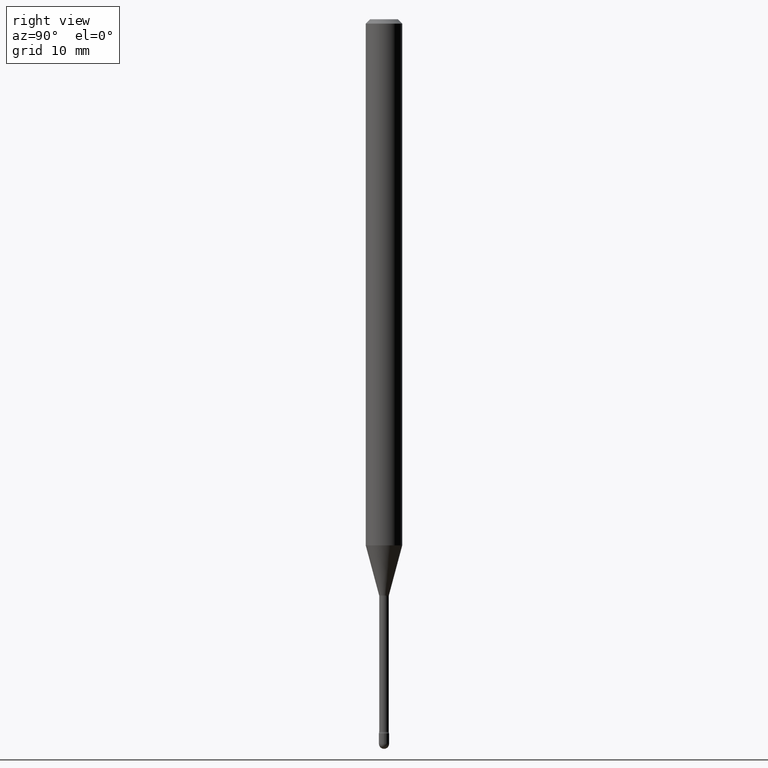
[diagram: clean part render]
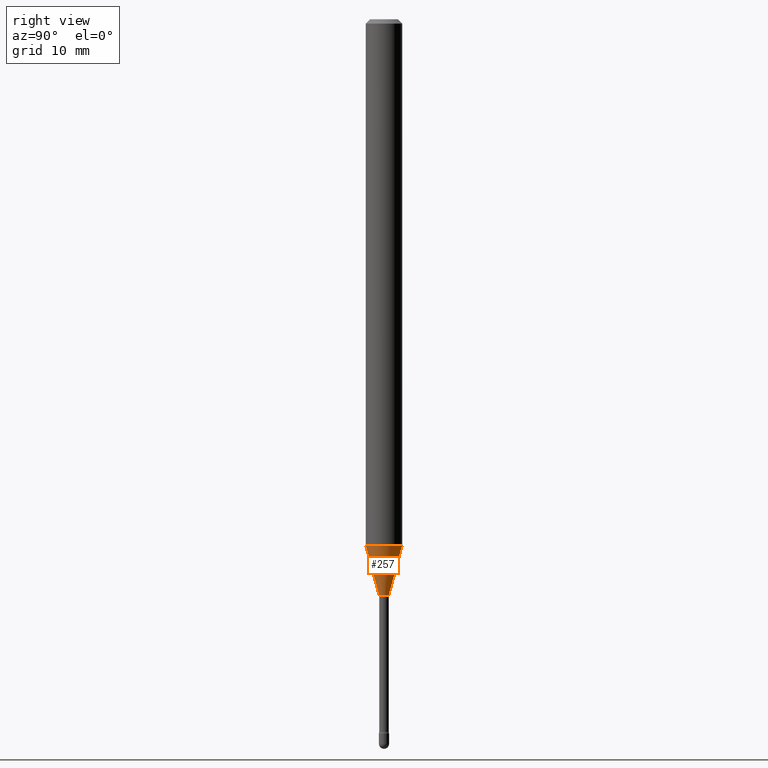
[diagram: same view with one face highlighted and labeled with its STEP entity id]
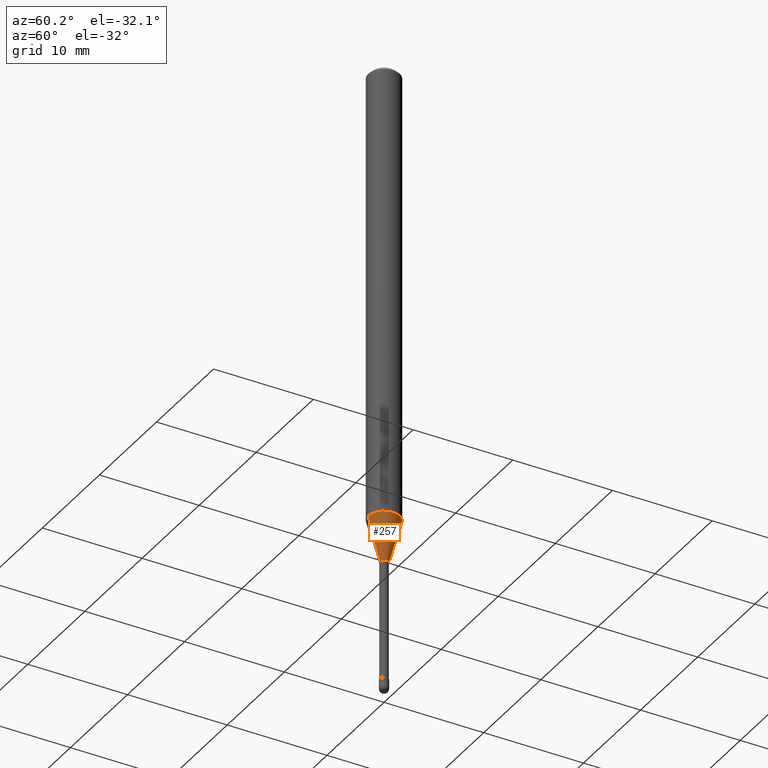
[diagram: same view with one face highlighted and labeled with its STEP entity id]
A machine part, right view. The second image highlights one B-rep face of the part: STEP entity #257.
A second angle (auxiliary view) of the same face is appended — the face is thin or edge-on in the first view.
In plain terms, the highlighted conical surface has half-angle 15 deg.
Its self-contained STEP definition (entity closure, byte-faithful):
#1 = CARTESIAN_POINT ( 'NONE',  ( 4.409534162188952545E-29, -6.295606565068949190E-15, -1.803139060311453656 ) ) ;
#8 = LINE ( 'NONE', #216, #560 ) ;
#36 = EDGE_CURVE ( 'NONE', #299, #368, #176, .T. ) ;
#66 = CIRCLE ( 'NONE', #314, 0.01696111260566398118 ) ;
#70 = ORIENTED_EDGE ( 'NONE', *, *, #494, .T. ) ;
#72 = CARTESIAN_POINT ( 'NONE',  ( 2.823025816868956740E-16, 0.01696111260565709433, -1.973092501787273134 ) ) ;
#77 = VERTEX_POINT ( 'NONE', #416 ) ;
#91 = DIRECTION ( 'NONE',  ( -2.445476480015523833E-29, 3.491470349481263853E-15, 1.000000000000000000 ) ) ;
#129 = CARTESIAN_POINT ( 'NONE',  ( 4.440892098501065952E-16, 0.06249999999999369948, -1.803139060311453878 ) ) ;
#170 = DIRECTION ( 'NONE',  ( -2.445476480015523833E-29, 3.491470349481263853E-15, 1.000000000000000000 ) ) ;
#176 = CIRCLE ( 'NONE', #478, 0.06250000000000000000 ) ;
#180 = DIRECTION ( 'NONE',  ( 1.839019923739598738E-15, 0.2588190451025247363, 0.9659258262890673130 ) ) ;
#181 = ORIENTED_EDGE ( 'NONE', *, *, #36, .F. ) ;
#216 = CARTESIAN_POINT ( 'NONE',  ( 1.205159535236843090E-16, 0.01696111260565709086, -1.973092501787273134 ) ) ;
#233 = CONICAL_SURFACE ( 'NONE', #558, 0.01696111260566398118, 0.2617993877991500740 ) ;
#254 = FACE_OUTER_BOUND ( 'NONE', #395, .T. ) ;
#257 = ADVANCED_FACE ( 'NONE', ( #254 ), #233, .T. ) ;
#264 = DIRECTION ( 'NONE',  ( -6.982962677686266711E-15, -1.000000000000000000, 0.000000000000000000 ) ) ;
#292 = CARTESIAN_POINT ( 'NONE',  ( -4.364351673553477397E-16, -0.06250000000000631439, -1.803139060311453434 ) ) ;
#299 = VERTEX_POINT ( 'NONE', #292 ) ;
#300 = CARTESIAN_POINT ( 'NONE',  ( -1.184388162973373725E-16, -0.01696111260567087151, -1.973092501787273134 ) ) ;
#301 = ORIENTED_EDGE ( 'NONE', *, *, #340, .F. ) ;
#314 = AXIS2_PLACEMENT_3D ( 'NONE', #482, #91, #264 ) ;
#326 = VERTEX_POINT ( 'NONE', #72 ) ;
#340 = EDGE_CURVE ( 'NONE', #77, #299, #444, .T. ) ;
#341 = CARTESIAN_POINT ( 'NONE',  ( 4.825151306015764472E-29, -6.888993966774070891E-15, -1.973092501787273134 ) ) ;
#356 = DIRECTION ( 'NONE',  ( -1.807323732225328562E-15, -0.2588190451025179639, 0.9659258262890690894 ) ) ;
#368 = VERTEX_POINT ( 'NONE', #129 ) ;
#395 = EDGE_LOOP ( 'NONE', ( #70, #507, #181, #301 ) ) ;
#416 = CARTESIAN_POINT ( 'NONE',  ( -1.184388162973373725E-16, -0.01696111260567087151, -1.973092501787273134 ) ) ;
#444 = LINE ( 'NONE', #300, #514 ) ;
#462 = EDGE_CURVE ( 'NONE', #326, #368, #8, .T. ) ;
#474 = DIRECTION ( 'NONE',  ( -6.982962677686266711E-15, -1.000000000000000000, 0.000000000000000000 ) ) ;
#478 = AXIS2_PLACEMENT_3D ( 'NONE', #1, #170, #523 ) ;
#482 = CARTESIAN_POINT ( 'NONE',  ( 4.825151306015764472E-29, -6.888993966774070891E-15, -1.973092501787273134 ) ) ;
#494 = EDGE_CURVE ( 'NONE', #77, #326, #66, .T. ) ;
#507 = ORIENTED_EDGE ( 'NONE', *, *, #462, .T. ) ;
#514 = VECTOR ( 'NONE', #356, 39.37007874015748854 ) ;
#523 = DIRECTION ( 'NONE',  ( -6.982962677686265922E-15, -1.000000000000000000, 4.370956789862821150E-15 ) ) ;
#558 = AXIS2_PLACEMENT_3D ( 'NONE', #341, #564, #474 ) ;
#560 = VECTOR ( 'NONE', #180, 39.37007874015748854 ) ;
#564 = DIRECTION ( 'NONE',  ( -2.445476480015523833E-29, 3.491470349481263853E-15, 1.000000000000000000 ) ) ;